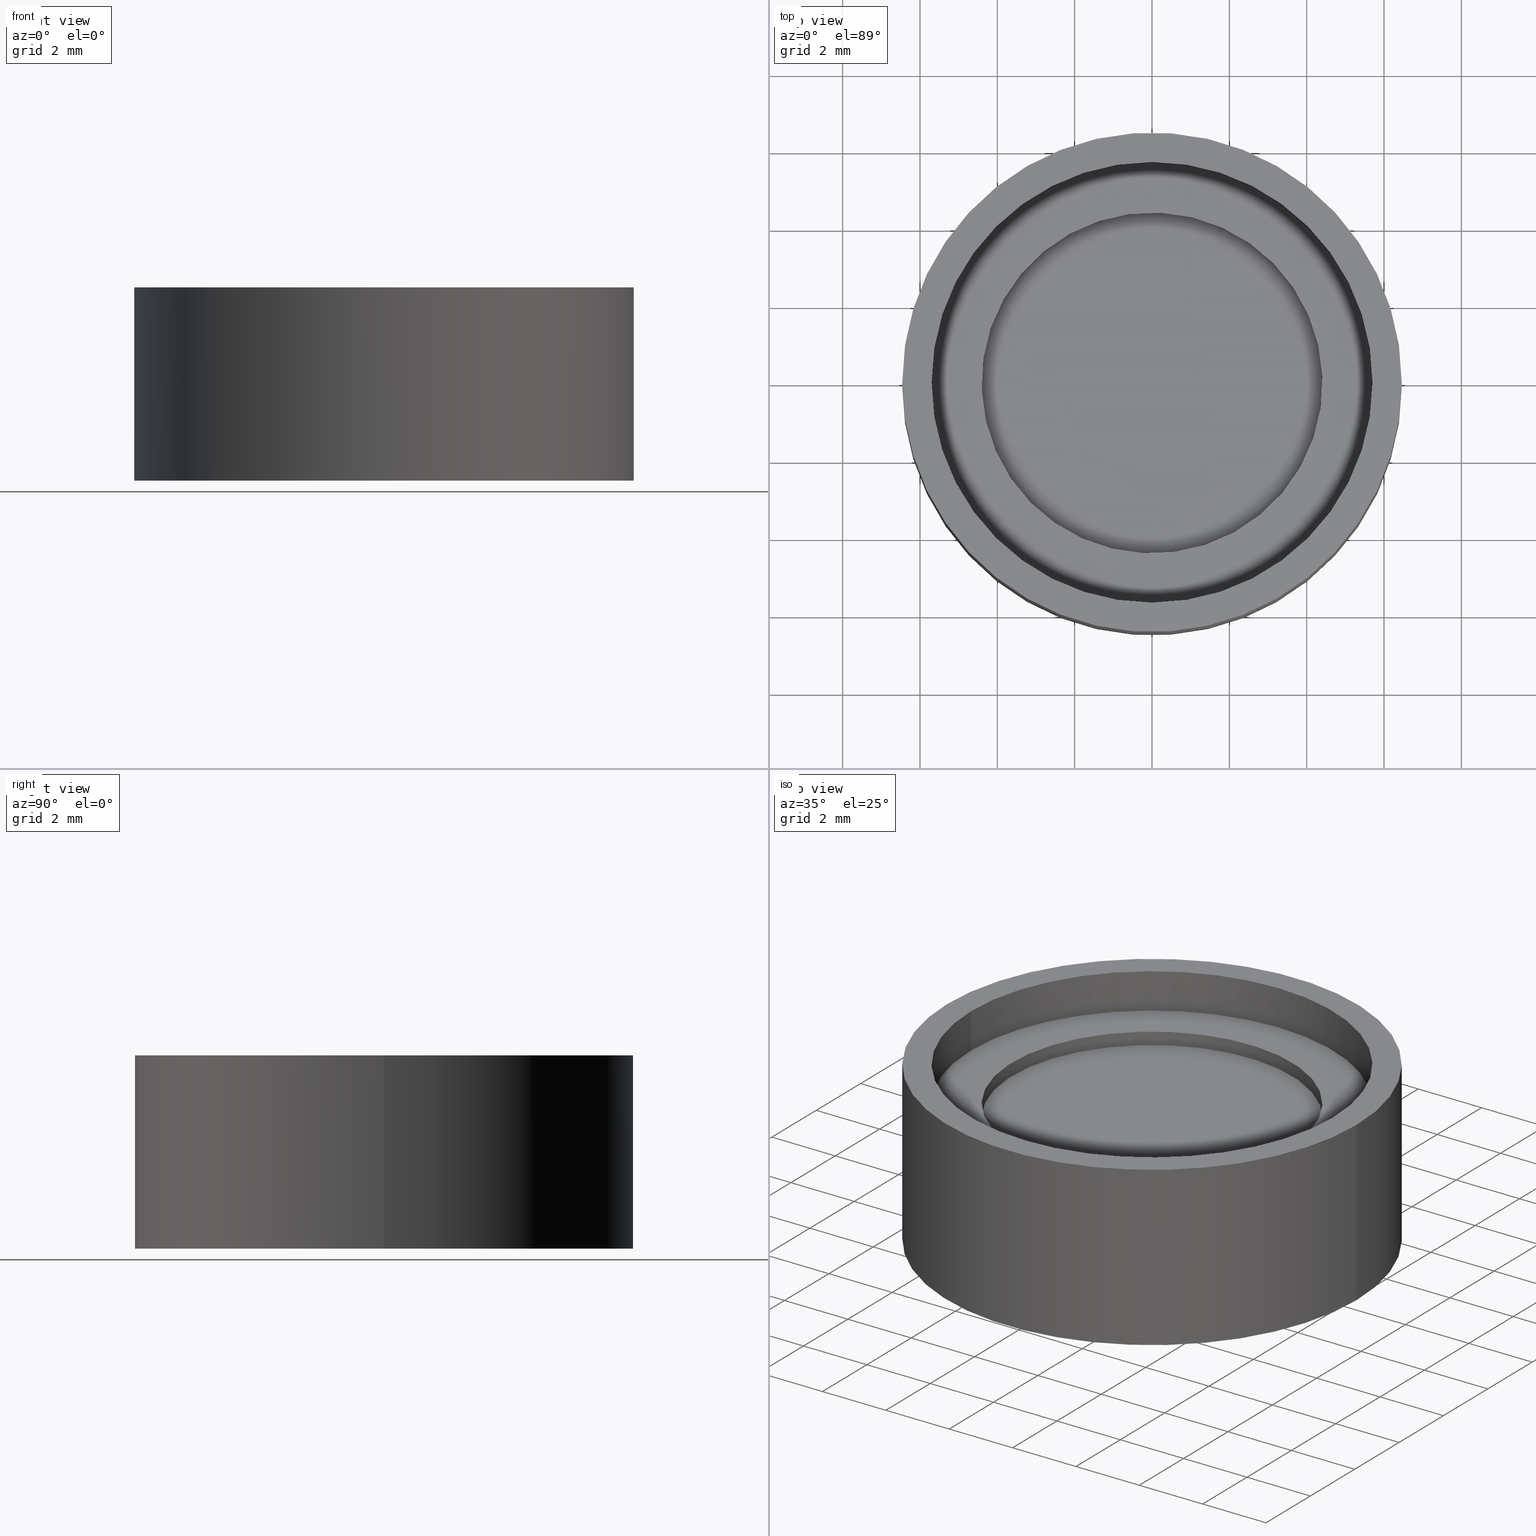
[diagram: canonical four-view strip — front | top / right | iso, engineering-drawing reading convention]
A machine part, canonical four-view strip (front | top / right | iso — engineering-drawing reading convention). The complete STEP part file that produces these views, byte-faithful:
ISO-10303-21;
HEADER;
FILE_DESCRIPTION (( 'STEP AP203' ),
    '1' );
FILE_NAME ('199480.STEP',
    '2020-03-09T09:01:57',
    ( '' ),
    ( '' ),
    'SwSTEP 2.0',
    'SolidWorks 2019',
    '' );
FILE_SCHEMA (( 'CONFIG_CONTROL_DESIGN' ));
ENDSEC;

DATA;
#1 = VERTEX_POINT ( 'NONE', #535 ) ;
#2 = CARTESIAN_POINT ( 'NONE',  ( 0.0000000000000000000, 0.0000000000000000000, -1.118999999999997996 ) ) ;
#3 = LOCAL_TIME ( 17, 1, 57.00000000000000000, #132 ) ;
#4 = ORIENTED_EDGE ( 'NONE', *, *, #342, .T. ) ;
#5 = DIRECTION ( 'NONE',  ( -0.0000000000000000000, -0.0000000000000000000, -1.000000000000000000 ) ) ;
#6 = DIRECTION ( 'NONE',  ( -0.0000000000000000000, -0.0000000000000000000, -1.000000000000000000 ) ) ;
#7 = ORIENTED_EDGE ( 'NONE', *, *, #44, .T. ) ;
#8 = APPLICATION_CONTEXT ( 'configuration controlled 3d designs of mechanical parts and assemblies' ) ;
#9 = CARTESIAN_POINT ( 'NONE',  ( 0.0000000000000000000, 0.0000000000000000000, 2.380999999999999339 ) ) ;
#10 = DIRECTION ( 'NONE',  ( -1.000000000000000000, 0.0000000000000000000, 0.0000000000000000000 ) ) ;
#11 = DIRECTION ( 'NONE',  ( -1.000000000000000000, 0.0000000000000000000, 0.0000000000000000000 ) ) ;
#12 = DIRECTION ( 'NONE',  ( -1.000000000000000000, 0.0000000000000000000, 0.0000000000000000000 ) ) ;
#13 = CARTESIAN_POINT ( 'NONE',  ( -5.200000000000000178, 0.0000000000000000000, -1.118999999999997996 ) ) ;
#14 = AXIS2_PLACEMENT_3D ( 'NONE', #585, #139, #87 ) ;
#15 = LOCAL_TIME ( 17, 1, 57.00000000000000000, #320 ) ;
#16 = PERSON_AND_ORGANIZATION_ROLE ( 'design_owner' ) ;
#17 = ORIENTED_EDGE ( 'NONE', *, *, #44, .F. ) ;
#18 = EDGE_CURVE ( 'NONE', #376, #388, #278, .T. ) ;
#19 = DIRECTION ( 'NONE',  ( -0.0000000000000000000, -0.0000000000000000000, -1.000000000000000000 ) ) ;
#20 = APPLICATION_PROTOCOL_DEFINITION ( 'international standard', 'config_control_design', 1994, #538 ) ;
#21 = ORIENTED_EDGE ( 'NONE', *, *, #196, .T. ) ;
#22 = VECTOR ( 'NONE', #589, 1000.000000000000000 ) ;
#23 = DIRECTION ( 'NONE',  ( 0.0000000000000000000, -0.0000000000000000000, 1.000000000000000000 ) ) ;
#24 = EDGE_CURVE ( 'NONE', #159, #214, #531, .T. ) ;
#25 = CARTESIAN_POINT ( 'NONE',  ( 0.0000000000000000000, 0.0000000000000000000, 2.381000000000000227 ) ) ;
#26 = CC_DESIGN_SECURITY_CLASSIFICATION ( #566, ( #341 ) ) ;
#27 = DIRECTION ( 'NONE',  ( -0.0000000000000000000, -0.0000000000000000000, -1.000000000000000000 ) ) ;
#28 = DIRECTION ( 'NONE',  ( 0.0000000000000000000, 0.0000000000000000000, 1.000000000000000000 ) ) ;
#29 = CALENDAR_DATE ( 2020, 9, 3 ) ;
#30 = DIRECTION ( 'NONE',  ( -1.000000000000000000, 0.0000000000000000000, 0.0000000000000000000 ) ) ;
#31 = ORIENTED_EDGE ( 'NONE', *, *, #448, .F. ) ;
#32 = EDGE_CURVE ( 'NONE', #388, #641, #339, .T. ) ;
#33 = CARTESIAN_POINT ( 'NONE',  ( 0.0000000000000000000, 0.0000000000000000000, -1.695065087290339889 ) ) ;
#34 = AXIS2_PLACEMENT_3D ( 'NONE', #33, #373, #73 ) ;
#35 = CYLINDRICAL_SURFACE ( 'NONE', #540, 6.458015859815825266 ) ;
#36 = EDGE_LOOP ( 'NONE', ( #257, #313 ) ) ;
#37 = ORIENTED_EDGE ( 'NONE', *, *, #173, .F. ) ;
#38 = VERTEX_POINT ( 'NONE', #490 ) ;
#39 = ORIENTED_EDGE ( 'NONE', *, *, #406, .T. ) ;
#40 = CLOSED_SHELL ( 'NONE', ( #122, #600, #93, #127, #502, #64 ) ) ;
#41 = AXIS2_PLACEMENT_3D ( 'NONE', #142, #186, #539 ) ;
#42 = VECTOR ( 'NONE', #215, 1000.000000000000000 ) ;
#43 = DIRECTION ( 'NONE',  ( 0.0000000000000000000, 0.0000000000000000000, 1.000000000000000000 ) ) ;
#44 = EDGE_CURVE ( 'NONE', #390, #626, #124, .T. ) ;
#45 = CARTESIAN_POINT ( 'NONE',  ( 0.0000000000000000000, 0.0000000000000000000, 2.380999999999999339 ) ) ;
#46 = LINE ( 'NONE', #165, #444 ) ;
#47 = DIRECTION ( 'NONE',  ( -1.000000000000000000, 0.0000000000000000000, 0.0000000000000000000 ) ) ;
#48 = DIRECTION ( 'NONE',  ( -0.0000000000000000000, -0.0000000000000000000, -1.000000000000000000 ) ) ;
#49 = VERTEX_POINT ( 'NONE', #636 ) ;
#50 = FACE_BOUND ( 'NONE', #36, .T. ) ;
#51 = ORIENTED_EDGE ( 'NONE', *, *, #379, .F. ) ;
#52 = DIRECTION ( 'NONE',  ( 0.0000000000000000000, 0.0000000000000000000, 1.000000000000000000 ) ) ;
#53 = CARTESIAN_POINT ( 'NONE',  ( 0.0000000000000000000, 0.0000000000000000000, 2.381000000000000227 ) ) ;
#54 = ORIENTED_EDGE ( 'NONE', *, *, #98, .F. ) ;
#55 = AXIS2_PLACEMENT_3D ( 'NONE', #2, #363, #160 ) ;
#56 = DIRECTION ( 'NONE',  ( 0.0000000000000000000, 0.0000000000000000000, -1.000000000000000000 ) ) ;
#57 = CYLINDRICAL_SURFACE ( 'NONE', #365, 5.700000000000000178 ) ;
#58 = CYLINDRICAL_SURFACE ( 'NONE', #171, 6.000000000000000000 ) ;
#59 = DIRECTION ( 'NONE',  ( 0.0000000000000000000, 0.0000000000000000000, 1.000000000000000000 ) ) ;
#60 = DIRECTION ( 'NONE',  ( 0.0000000000000000000, 0.0000000000000000000, 1.000000000000000000 ) ) ;
#61 = CC_DESIGN_DATE_AND_TIME_ASSIGNMENT ( #133, #243, ( #566 ) ) ;
#62 = FACE_OUTER_BOUND ( 'NONE', #495, .T. ) ;
#63 = DIRECTION ( 'NONE',  ( 0.8068447097065265528, 0.5907635858942146267, 0.0000000000000000000 ) ) ;
#64 = ADVANCED_FACE ( 'NONE', ( #527 ), #286, .F. ) ;
#65 = PERSON_AND_ORGANIZATION_ROLE ( 'creator' ) ;
#66 = VECTOR ( 'NONE', #630, 1000.000000000000000 ) ;
#67 = AXIS2_PLACEMENT_3D ( 'NONE', #514, #409, #449 ) ;
#68 = AXIS2_PLACEMENT_3D ( 'NONE', #446, #59, #652 ) ;
#69 = CIRCLE ( 'NONE', #445, 6.000000000000000888 ) ;
#70 = PERSON_AND_ORGANIZATION ( #606, #593 ) ;
#71 = ORIENTED_EDGE ( 'NONE', *, *, #234, .F. ) ;
#72 = EDGE_CURVE ( 'NONE', #181, #529, #491, .T. ) ;
#73 = DIRECTION ( 'NONE',  ( -1.000000000000000000, 0.0000000000000000000, 0.0000000000000000000 ) ) ;
#74 = APPROVAL_ROLE ( '' ) ;
#75 = ORIENTED_EDGE ( 'NONE', *, *, #173, .T. ) ;
#76 = DIRECTION ( 'NONE',  ( 0.8284142084669521289, 0.5601159694296110603, 0.0000000000000000000 ) ) ;
#77 = DIRECTION ( 'NONE',  ( 0.0000000000000000000, 0.0000000000000000000, 1.000000000000000000 ) ) ;
#78 = DATE_TIME_ROLE ( 'creation_date' ) ;
#79 = EDGE_LOOP ( 'NONE', ( #17, #650, #95, #71 ) ) ;
#80 = ADVANCED_FACE ( 'NONE', ( #437 ), #35, .T. ) ;
#81 = AXIS2_PLACEMENT_3D ( 'NONE', #400, #269, #410 ) ;
#82 = LINE ( 'NONE', #635, #154 ) ;
#83 = DIRECTION ( 'NONE',  ( -1.000000000000000000, 0.0000000000000000000, 0.0000000000000000000 ) ) ;
#84 = AXIS2_PLACEMENT_3D ( 'NONE', #13, #353, #270 ) ;
#85 = APPROVAL_DATE_TIME ( #88, #244 ) ;
#86 = CARTESIAN_POINT ( 'NONE',  ( 0.0000000000000000000, 0.0000000000000000000, 2.381000000000000227 ) ) ;
#87 = DIRECTION ( 'NONE',  ( -1.000000000000000000, 0.0000000000000000000, 0.0000000000000000000 ) ) ;
#88 = DATE_AND_TIME ( #29, #233 ) ;
#89 = CARTESIAN_POINT ( 'NONE',  ( 6.000000000000001776, 7.347880794884121708E-16, 0.8809999999999997833 ) ) ;
#90 = DIRECTION ( 'NONE',  ( 0.8284142084669521289, 0.5601159694296110603, 0.0000000000000000000 ) ) ;
#91 = EDGE_CURVE ( 'NONE', #272, #557, #238, .T. ) ;
#92 = EDGE_CURVE ( 'NONE', #38, #371, #627, .T. ) ;
#93 = ADVANCED_FACE ( 'NONE', ( #480 ), #183, .T. ) ;
#94 = ORIENTED_EDGE ( 'NONE', *, *, #508, .T. ) ;
#95 = ORIENTED_EDGE ( 'NONE', *, *, #289, .T. ) ;
#96 = ORIENTED_EDGE ( 'NONE', *, *, #497, .F. ) ;
#97 = ORIENTED_EDGE ( 'NONE', *, *, #328, .F. ) ;
#98 = EDGE_CURVE ( 'NONE', #247, #159, #113, .T. ) ;
#99 = CIRCLE ( 'NONE', #350, 6.000000000000000000 ) ;
#100 = DIRECTION ( 'NONE',  ( -0.0000000000000000000, -0.0000000000000000000, -1.000000000000000000 ) ) ;
#101 = DIRECTION ( 'NONE',  ( 0.8284142084669522399, 0.5601159694296110603, 0.0000000000000000000 ) ) ;
#102 = EDGE_LOOP ( 'NONE', ( #198, #509 ) ) ;
#103 = DIRECTION ( 'NONE',  ( 0.0000000000000000000, -0.0000000000000000000, 1.000000000000000000 ) ) ;
#104 = APPROVAL ( #128, 'δָ��' ) ;
#105 = DIRECTION ( 'NONE',  ( -1.000000000000000000, 0.0000000000000000000, 0.0000000000000000000 ) ) ;
#106 = DIRECTION ( 'NONE',  ( 0.8068447097065264417, 0.5907635858942145157, 0.0000000000000000000 ) ) ;
#107 = FACE_OUTER_BOUND ( 'NONE', #136, .T. ) ;
#108 = FACE_OUTER_BOUND ( 'NONE', #432, .T. ) ;
#109 = ORIENTED_EDGE ( 'NONE', *, *, #217, .T. ) ;
#110 = LINE ( 'NONE', #251, #468 ) ;
#111 = DIRECTION ( 'NONE',  ( -1.000000000000000000, 0.0000000000000000000, 0.0000000000000000000 ) ) ;
#112 = DIRECTION ( 'NONE',  ( 0.8068447097065265528, 0.5907635858942146267, 0.0000000000000000000 ) ) ;
#113 = CIRCLE ( 'NONE', #415, 6.000000000000000888 ) ;
#114 = VERTEX_POINT ( 'NONE', #281 ) ;
#115 = FACE_OUTER_BOUND ( 'NONE', #389, .T. ) ;
#116 = AXIS2_PLACEMENT_3D ( 'NONE', #158, #206, #201 ) ;
#117 = CARTESIAN_POINT ( 'NONE',  ( 0.0000000000000000000, 0.0000000000000000000, 2.381000000000000227 ) ) ;
#118 =( LENGTH_UNIT ( ) NAMED_UNIT ( * ) SI_UNIT ( .MILLI., .METRE. ) );
#119 = EDGE_CURVE ( 'NONE', #293, #440, #479, .T. ) ;
#120 = CARTESIAN_POINT ( 'NONE',  ( -5.700000000000000178, 0.0000000000000000000, 0.8809999999999997833 ) ) ;
#121 = PERSON_AND_ORGANIZATION_ROLE ( 'creator' ) ;
#122 = ADVANCED_FACE ( 'NONE', ( #478 ), #530, .F. ) ;
#123 = PERSON_AND_ORGANIZATION_ROLE ( 'classification_officer' ) ;
#124 = CIRCLE ( 'NONE', #14, 5.200000000000000178 ) ;
#125 = AXIS2_PLACEMENT_3D ( 'NONE', #506, #161, #12 ) ;
#126 = AXIS2_PLACEMENT_3D ( 'NONE', #213, #48, #250 ) ;
#127 = ADVANCED_FACE ( 'NONE', ( #433, #237 ), #329, .F. ) ;
#128 = APPROVAL_STATUS ( 'not_yet_approved' ) ;
#129 = ORIENTED_EDGE ( 'NONE', *, *, #179, .F. ) ;
#130 = DIRECTION ( 'NONE',  ( -1.000000000000000000, 0.0000000000000000000, 0.0000000000000000000 ) ) ;
#131 = ORIENTED_EDGE ( 'NONE', *, *, #192, .F. ) ;
#132 = COORDINATED_UNIVERSAL_TIME_OFFSET ( 8, 0, .AHEAD. ) ;
#133 = DATE_AND_TIME ( #425, #15 ) ;
#134 = EDGE_LOOP ( 'NONE', ( #420, #634 ) ) ;
#135 = DIRECTION ( 'NONE',  ( 0.0000000000000000000, 0.0000000000000000000, 1.000000000000000000 ) ) ;
#136 = EDGE_LOOP ( 'NONE', ( #291, #550 ) ) ;
#137 = AXIS2_PLACEMENT_3D ( 'NONE', #298, #565, #47 ) ;
#138 = DIRECTION ( 'NONE',  ( -1.000000000000000000, 0.0000000000000000000, 0.0000000000000000000 ) ) ;
#139 = DIRECTION ( 'NONE',  ( -0.0000000000000000000, -0.0000000000000000000, -1.000000000000000000 ) ) ;
#140 = CARTESIAN_POINT ( 'NONE',  ( 4.599014845327200618, 3.367352439597023572, 2.380999999999999339 ) ) ;
#141 = DIRECTION ( 'NONE',  ( 0.8284142084669521289, 0.5601159694296110603, 0.0000000000000000000 ) ) ;
#142 = CARTESIAN_POINT ( 'NONE',  ( 0.0000000000000000000, 0.0000000000000000000, 0.8809999999999997833 ) ) ;
#143 = CIRCLE ( 'NONE', #458, 5.699999999999999289 ) ;
#144 = EDGE_CURVE ( 'NONE', #390, #578, #82, .T. ) ;
#145 = ORIENTED_EDGE ( 'NONE', *, *, #561, .F. ) ;
#146 = ORIENTED_EDGE ( 'NONE', *, *, #196, .F. ) ;
#147 = ORIENTED_EDGE ( 'NONE', *, *, #448, .T. ) ;
#148 = EDGE_LOOP ( 'NONE', ( #129, #229, #333, #146 ) ) ;
#149 = DIRECTION ( 'NONE',  ( 0.8068447097065265528, 0.5907635858942146267, 0.0000000000000000000 ) ) ;
#150 = CARTESIAN_POINT ( 'NONE',  ( 0.0000000000000000000, 0.0000000000000000000, 2.762000000000000011 ) ) ;
#151 = EDGE_CURVE ( 'NONE', #529, #181, #168, .T. ) ;
#152 = ORIENTED_EDGE ( 'NONE', *, *, #169, .T. ) ;
#153 = CLOSED_SHELL ( 'NONE', ( #654, #334, #421, #581, #573, #541, #623, #80, #266, #617, #398, #222 ) ) ;
#154 = VECTOR ( 'NONE', #285, 1000.000000000000000 ) ;
#155 = CARTESIAN_POINT ( 'NONE',  ( 5.200000000000000178, 6.368163355566236381E-16, -1.118999999999997996 ) ) ;
#156 = FACE_OUTER_BOUND ( 'NONE', #554, .T. ) ;
#157 = CARTESIAN_POINT ( 'NONE',  ( 0.0000000000000000000, 0.0000000000000000000, 3.881000000000001560 ) ) ;
#158 = CARTESIAN_POINT ( 'NONE',  ( -6.000000000000000000, 0.0000000000000000000, 0.3810000000000000053 ) ) ;
#159 = VERTEX_POINT ( 'NONE', #89 ) ;
#160 = DIRECTION ( 'NONE',  ( -1.000000000000000000, 0.0000000000000000000, 0.0000000000000000000 ) ) ;
#161 = DIRECTION ( 'NONE',  ( -0.0000000000000000000, -0.0000000000000000000, -1.000000000000000000 ) ) ;
#162 = EDGE_CURVE ( 'NONE', #214, #49, #99, .T. ) ;
#163 = CYLINDRICAL_SURFACE ( 'NONE', #225, 5.200000000000000178 ) ;
#164 = ORIENTED_EDGE ( 'NONE', *, *, #264, .F. ) ;
#165 = CARTESIAN_POINT ( 'NONE',  ( -5.700000000000000178, 0.0000000000000000000, -1.695065087290339889 ) ) ;
#166 = CARTESIAN_POINT ( 'NONE',  ( -4.734387201388630118, -3.201062765290225709, 2.381000000000000227 ) ) ;
#167 = CARTESIAN_POINT ( 'NONE',  ( -4.599014845327200618, -3.367352439597023128, 0.3810000000000000053 ) ) ;
#168 = CIRCLE ( 'NONE', #288, 4.406899999999999373 ) ;
#169 = EDGE_CURVE ( 'NONE', #1, #529, #182, .T. ) ;
#170 = VECTOR ( 'NONE', #302, 1000.000000000000000 ) ;
#171 = AXIS2_PLACEMENT_3D ( 'NONE', #267, #412, #598 ) ;
#172 = CARTESIAN_POINT ( 'NONE',  ( 0.0000000000000000000, 0.0000000000000000000, -1.118999999999997996 ) ) ;
#173 = EDGE_CURVE ( 'NONE', #387, #345, #498, .T. ) ;
#174 = PERSON_AND_ORGANIZATION ( #606, #593 ) ;
#175 = ORIENTED_EDGE ( 'NONE', *, *, #271, .F. ) ;
#176 = VECTOR ( 'NONE', #591, 1000.000000000000000 ) ;
#177 = CIRCLE ( 'NONE', #312, 5.714999999999998082 ) ;
#178 = DIRECTION ( 'NONE',  ( -0.0000000000000000000, -0.0000000000000000000, -1.000000000000000000 ) ) ;
#179 = EDGE_CURVE ( 'NONE', #293, #450, #422, .T. ) ;
#180 = PERSON_AND_ORGANIZATION ( #606, #593 ) ;
#181 = VERTEX_POINT ( 'NONE', #185 ) ;
#182 = LINE ( 'NONE', #577, #66 ) ;
#183 = CYLINDRICAL_SURFACE ( 'NONE', #259, 5.714999999999998082 ) ;
#184 = CC_DESIGN_DATE_AND_TIME_ASSIGNMENT ( #370, #78, ( #227 ) ) ;
#185 = CARTESIAN_POINT ( 'NONE',  ( -3.650738575293011490, -2.468375065679352165, 2.762000000000000011 ) ) ;
#186 = DIRECTION ( 'NONE',  ( -0.0000000000000000000, -0.0000000000000000000, -1.000000000000000000 ) ) ;
#187 = CIRCLE ( 'NONE', #352, 6.458015859815825266 ) ;
#188 = CARTESIAN_POINT ( 'NONE',  ( -6.458015859815825266, 0.0000000000000000000, -1.695065087290339889 ) ) ;
#189 = DIRECTION ( 'NONE',  ( 0.0000000000000000000, 0.0000000000000000000, 1.000000000000000000 ) ) ;
#190 = LOCAL_TIME ( 17, 1, 57.00000000000000000, #220 ) ;
#191 = DIRECTION ( 'NONE',  ( -1.000000000000000000, 0.0000000000000000000, 0.0000000000000000000 ) ) ;
#192 = EDGE_CURVE ( 'NONE', #345, #387, #241, .T. ) ;
#193 = ORIENTED_EDGE ( 'NONE', *, *, #72, .T. ) ;
#194 = ORIENTED_EDGE ( 'NONE', *, *, #386, .T. ) ;
#195 = AXIS2_PLACEMENT_3D ( 'NONE', #377, #325, #138 ) ;
#196 = EDGE_CURVE ( 'NONE', #450, #322, #571, .T. ) ;
#197 = ORIENTED_EDGE ( 'NONE', *, *, #328, .T. ) ;
#198 = ORIENTED_EDGE ( 'NONE', *, *, #497, .T. ) ;
#199 = MANIFOLD_SOLID_BREP ( 'NONE', #618 ) ;
#200 = FACE_OUTER_BOUND ( 'NONE', #102, .T. ) ;
#201 = DIRECTION ( 'NONE',  ( 1.000000000000000000, 0.0000000000000000000, -0.0000000000000000000 ) ) ;
#202 = DIRECTION ( 'NONE',  ( 0.8068447097065265528, 0.5907635858942146267, 0.0000000000000000000 ) ) ;
#203 = ORIENTED_EDGE ( 'NONE', *, *, #323, .T. ) ;
#204 = DIRECTION ( 'NONE',  ( 0.8068447097065264417, 0.5907635858942145157, 0.0000000000000000000 ) ) ;
#205 = AXIS2_PLACEMENT_3D ( 'NONE', #280, #23, #428 ) ;
#206 = DIRECTION ( 'NONE',  ( 0.0000000000000000000, 0.0000000000000000000, 1.000000000000000000 ) ) ;
#207 = EDGE_LOOP ( 'NONE', ( #362, #404, #381, #346 ) ) ;
#208 = AXIS2_PLACEMENT_3D ( 'NONE', #226, #632, #472 ) ;
#209 = CARTESIAN_POINT ( 'NONE',  ( 0.0000000000000000000, 0.0000000000000000000, 2.380999999999999339 ) ) ;
#210 = EDGE_LOOP ( 'NONE', ( #580, #7 ) ) ;
#211 = DIRECTION ( 'NONE',  ( 0.0000000000000000000, 0.0000000000000000000, 1.000000000000000000 ) ) ;
#212 = EDGE_CURVE ( 'NONE', #440, #322, #640, .T. ) ;
#213 = CARTESIAN_POINT ( 'NONE',  ( 0.0000000000000000000, 0.0000000000000000000, -1.695065087290339889 ) ) ;
#214 = VERTEX_POINT ( 'NONE', #588 ) ;
#215 = DIRECTION ( 'NONE',  ( -0.0000000000000000000, -0.0000000000000000000, -1.000000000000000000 ) ) ;
#216 = DIRECTION ( 'NONE',  ( -0.0000000000000000000, -0.0000000000000000000, -1.000000000000000000 ) ) ;
#217 = EDGE_CURVE ( 'NONE', #496, #601, #335, .T. ) ;
#218 = CARTESIAN_POINT ( 'NONE',  ( 0.0000000000000000000, 0.0000000000000000000, 2.380999999999999339 ) ) ;
#219 = CARTESIAN_POINT ( 'NONE',  ( 0.0000000000000000000, 0.0000000000000000000, 2.381000000000000227 ) ) ;
#220 = COORDINATED_UNIVERSAL_TIME_OFFSET ( 8, 0, .AHEAD. ) ;
#221 = AXIS2_PLACEMENT_3D ( 'NONE', #486, #584, #30 ) ;
#222 = ADVANCED_FACE ( 'NONE', ( #526 ), #489, .F. ) ;
#223 = AXIS2_PLACEMENT_3D ( 'NONE', #567, #211, #520 ) ;
#224 = CIRCLE ( 'NONE', #68, 5.714999999999998082 ) ;
#225 = AXIS2_PLACEMENT_3D ( 'NONE', #602, #6, #347 ) ;
#226 = CARTESIAN_POINT ( 'NONE',  ( 0.0000000000000000000, 0.0000000000000000000, 0.0000000000000000000 ) ) ;
#227 = PRODUCT_DEFINITION ( 'δ֪', '', #341, #463 ) ;
#228 = PERSON_AND_ORGANIZATION ( #606, #593 ) ;
#229 = ORIENTED_EDGE ( 'NONE', *, *, #119, .T. ) ;
#230 = CARTESIAN_POINT ( 'NONE',  ( -6.000000000000000888, 0.0000000000000000000, 0.8809999999999997833 ) ) ;
#231 = APPROVAL_STATUS ( 'not_yet_approved' ) ;
#232 = EDGE_LOOP ( 'NONE', ( #608, #109, #197, #646 ) ) ;
#233 = LOCAL_TIME ( 17, 1, 57.00000000000000000, #644 ) ;
#234 = EDGE_CURVE ( 'NONE', #626, #408, #582, .T. ) ;
#235 = CARTESIAN_POINT ( 'NONE',  ( 0.0000000000000000000, 0.0000000000000000000, 3.881000000000001560 ) ) ;
#236 = DIRECTION ( 'NONE',  ( 0.0000000000000000000, 0.0000000000000000000, 1.000000000000000000 ) ) ;
#237 = FACE_BOUND ( 'NONE', #255, .T. ) ;
#238 = LINE ( 'NONE', #385, #176 ) ;
#239 = DIRECTION ( 'NONE',  ( -1.000000000000000000, 0.0000000000000000000, 0.0000000000000000000 ) ) ;
#240 = ORIENTED_EDGE ( 'NONE', *, *, #32, .F. ) ;
#241 = CIRCLE ( 'NONE', #195, 5.699999999999999289 ) ;
#242 = CARTESIAN_POINT ( 'NONE',  ( 0.0000000000000000000, 0.0000000000000000000, -1.695065087290339889 ) ) ;
#243 = DATE_TIME_ROLE ( 'classification_date' ) ;
#244 = APPROVAL ( #337, 'δָ��' ) ;
#245 = ORIENTED_EDGE ( 'NONE', *, *, #217, .F. ) ;
#246 = ORIENTED_EDGE ( 'NONE', *, *, #430, .F. ) ;
#247 = VERTEX_POINT ( 'NONE', #230 ) ;
#248 = ORIENTED_EDGE ( 'NONE', *, *, #24, .F. ) ;
#249 = CARTESIAN_POINT ( 'NONE',  ( -6.000000000000000000, 0.0000000000000000000, -1.695065087290339889 ) ) ;
#250 = DIRECTION ( 'NONE',  ( -1.000000000000000000, 0.0000000000000000000, 0.0000000000000000000 ) ) ;
#251 = CARTESIAN_POINT ( 'NONE',  ( 4.734387201388630118, 3.201062765290226153, 2.381000000000000227 ) ) ;
#252 = VERTEX_POINT ( 'NONE', #338 ) ;
#253 = CARTESIAN_POINT ( 'NONE',  ( 0.0000000000000000000, 0.0000000000000000000, -1.695065087290339889 ) ) ;
#254 = FACE_BOUND ( 'NONE', #613, .T. ) ;
#255 = EDGE_LOOP ( 'NONE', ( #399, #194 ) ) ;
#256 = CARTESIAN_POINT ( 'NONE',  ( 6.458015859815827042, 7.908788451566294723E-16, -1.118999999999997996 ) ) ;
#257 = ORIENTED_EDGE ( 'NONE', *, *, #374, .F. ) ;
#258 = PLANE ( 'NONE',  #223 ) ;
#259 = AXIS2_PLACEMENT_3D ( 'NONE', #25, #236, #429 ) ;
#260 = AXIS2_PLACEMENT_3D ( 'NONE', #314, #603, #354 ) ;
#261 = FACE_BOUND ( 'NONE', #210, .T. ) ;
#262 = ORIENTED_EDGE ( 'NONE', *, *, #144, .F. ) ;
#263 = LINE ( 'NONE', #461, #42 ) ;
#264 = EDGE_CURVE ( 'NONE', #626, #390, #321, .T. ) ;
#265 = DIRECTION ( 'NONE',  ( -0.0000000000000000000, -0.0000000000000000000, -1.000000000000000000 ) ) ;
#266 = ADVANCED_FACE ( 'NONE', ( #462, #360 ), #258, .T. ) ;
#267 = CARTESIAN_POINT ( 'NONE',  ( 0.0000000000000000000, 0.0000000000000000000, -1.695065087290339889 ) ) ;
#268 = FACE_OUTER_BOUND ( 'NONE', #594, .T. ) ;
#269 = DIRECTION ( 'NONE',  ( 0.0000000000000000000, 0.0000000000000000000, 1.000000000000000000 ) ) ;
#270 = DIRECTION ( 'NONE',  ( -1.000000000000000000, 0.0000000000000000000, 0.0000000000000000000 ) ) ;
#271 = EDGE_CURVE ( 'NONE', #1, #252, #564, .T. ) ;
#272 = VERTEX_POINT ( 'NONE', #457 ) ;
#273 = CARTESIAN_POINT ( 'NONE',  ( -5.200000000000000178, 0.0000000000000000000, -1.695065087290339889 ) ) ;
#274 = APPROVAL_DATE_TIME ( #375, #305 ) ;
#275 = SHAPE_DEFINITION_REPRESENTATION ( #569, #284 ) ;
#276 = ORIENTED_EDGE ( 'NONE', *, *, #488, .F. ) ;
#277 = DIRECTION ( 'NONE',  ( -1.000000000000000000, 0.0000000000000000000, 0.0000000000000000000 ) ) ;
#278 = LINE ( 'NONE', #485, #396 ) ;
#279 = AXIS2_PLACEMENT_3D ( 'NONE', #610, #308, #63 ) ;
#280 = CARTESIAN_POINT ( 'NONE',  ( 0.0000000000000000000, 0.0000000000000000000, 2.381000000000000227 ) ) ;
#281 = CARTESIAN_POINT ( 'NONE',  ( 4.734387201388630118, 3.201062765290226153, 2.381000000000000227 ) ) ;
#282 = DIRECTION ( 'NONE',  ( 0.8284142084669521289, 0.5601159694296110603, 0.0000000000000000000 ) ) ;
#283 = CARTESIAN_POINT ( 'NONE',  ( 0.0000000000000000000, 0.0000000000000000000, 2.381000000000000227 ) ) ;
#284 = ADVANCED_BREP_SHAPE_REPRESENTATION ( '199480', ( #199, #394, #637, #208 ), #576 ) ;
#285 = DIRECTION ( 'NONE',  ( -0.0000000000000000000, -0.0000000000000000000, -1.000000000000000000 ) ) ;
#286 = CYLINDRICAL_SURFACE ( 'NONE', #348, 4.406899999999999373 ) ;
#287 = CC_DESIGN_PERSON_AND_ORGANIZATION_ASSIGNMENT ( #228, #65, ( #227 ) ) ;
#288 = AXIS2_PLACEMENT_3D ( 'NONE', #431, #135, #76 ) ;
#289 = EDGE_CURVE ( 'NONE', #578, #408, #492, .T. ) ;
#290 = ORIENTED_EDGE ( 'NONE', *, *, #392, .F. ) ;
#291 = ORIENTED_EDGE ( 'NONE', *, *, #98, .T. ) ;
#292 = ORIENTED_EDGE ( 'NONE', *, *, #474, .F. ) ;
#293 = VERTEX_POINT ( 'NONE', #465 ) ;
#294 = EDGE_LOOP ( 'NONE', ( #460, #75 ) ) ;
#295 = CARTESIAN_POINT ( 'NONE',  ( 4.599014845327200618, 3.367352439597023572, 0.3810000000000000053 ) ) ;
#296 = DIRECTION ( 'NONE',  ( 0.0000000000000000000, 0.0000000000000000000, 1.000000000000000000 ) ) ;
#297 = EDGE_LOOP ( 'NONE', ( #595, #301, #147, #240 ) ) ;
#298 = CARTESIAN_POINT ( 'NONE',  ( 0.0000000000000000000, 0.0000000000000000000, 0.3809999999999998388 ) ) ;
#299 = ADVANCED_FACE ( 'NONE', ( #519 ), #620, .F. ) ;
#300 = CARTESIAN_POINT ( 'NONE',  ( 0.0000000000000000000, 0.0000000000000000000, 2.381000000000000227 ) ) ;
#301 = ORIENTED_EDGE ( 'NONE', *, *, #645, .T. ) ;
#302 = DIRECTION ( 'NONE',  ( -0.0000000000000000000, -0.0000000000000000000, -1.000000000000000000 ) ) ;
#303 = CARTESIAN_POINT ( 'NONE',  ( 0.0000000000000000000, 0.0000000000000000000, 0.3810000000000000053 ) ) ;
#304 = FACE_OUTER_BOUND ( 'NONE', #500, .T. ) ;
#305 = APPROVAL ( #231, 'δָ��' ) ;
#306 = EDGE_LOOP ( 'NONE', ( #37, #358, #597, #434 ) ) ;
#307 = DIRECTION ( 'NONE',  ( 0.0000000000000000000, 0.0000000000000000000, 1.000000000000000000 ) ) ;
#308 = DIRECTION ( 'NONE',  ( 0.0000000000000000000, 0.0000000000000000000, 1.000000000000000000 ) ) ;
#309 = CIRCLE ( 'NONE', #340, 6.458015859815826154 ) ;
#310 = CIRCLE ( 'NONE', #481, 5.699999999999999289 ) ;
#311 = DIRECTION ( 'NONE',  ( -0.8068447097065265528, -0.5907635858942146267, 0.0000000000000000000 ) ) ;
#312 = AXIS2_PLACEMENT_3D ( 'NONE', #53, #447, #607 ) ;
#313 = ORIENTED_EDGE ( 'NONE', *, *, #92, .F. ) ;
#314 = CARTESIAN_POINT ( 'NONE',  ( 0.0000000000000000000, 0.0000000000000000000, -1.695065087290339889 ) ) ;
#315 = DIRECTION ( 'NONE',  ( 0.8284142084669521289, 0.5601159694296110603, 0.0000000000000000000 ) ) ;
#316 = CYLINDRICAL_SURFACE ( 'NONE', #367, 5.200000000000000178 ) ;
#317 = CARTESIAN_POINT ( 'NONE',  ( 0.0000000000000000000, 0.0000000000000000000, 0.8809999999999997833 ) ) ;
#318 = PRODUCT_RELATED_PRODUCT_CATEGORY ( 'detail', '', ( #590 ) ) ;
#319 = PERSON_AND_ORGANIZATION ( #606, #593 ) ;
#320 = COORDINATED_UNIVERSAL_TIME_OFFSET ( 8, 0, .AHEAD. ) ;
#321 = CIRCLE ( 'NONE', #125, 5.200000000000000178 ) ;
#322 = VERTEX_POINT ( 'NONE', #364 ) ;
#323 = EDGE_CURVE ( 'NONE', #322, #450, #309, .T. ) ;
#324 = UNCERTAINTY_MEASURE_WITH_UNIT (LENGTH_MEASURE( 1.000000000000000082E-05 ), #118, 'distance_accuracy_value', 'NONE');
#325 = DIRECTION ( 'NONE',  ( -0.0000000000000000000, -0.0000000000000000000, -1.000000000000000000 ) ) ;
#326 = CARTESIAN_POINT ( 'NONE',  ( 0.0000000000000000000, 0.0000000000000000000, 2.762000000000000011 ) ) ;
#327 = ORIENTED_EDGE ( 'NONE', *, *, #386, .F. ) ;
#328 = EDGE_CURVE ( 'NONE', #601, #557, #515, .T. ) ;
#329 = PLANE ( 'NONE',  #205 ) ;
#330 = ORIENTED_EDGE ( 'NONE', *, *, #474, .T. ) ;
#331 = AXIS2_PLACEMENT_3D ( 'NONE', #614, #56, #553 ) ;
#332 = CARTESIAN_POINT ( 'NONE',  ( 0.0000000000000000000, 0.0000000000000000000, -1.118999999999997996 ) ) ;
#333 = ORIENTED_EDGE ( 'NONE', *, *, #212, .T. ) ;
#334 = ADVANCED_FACE ( 'NONE', ( #516 ), #57, .F. ) ;
#335 = LINE ( 'NONE', #140, #435 ) ;
#336 = DIRECTION ( 'NONE',  ( 0.8284142084669521289, 0.5601159694296110603, 0.0000000000000000000 ) ) ;
#337 = APPROVAL_STATUS ( 'not_yet_approved' ) ;
#338 = CARTESIAN_POINT ( 'NONE',  ( -3.650738575293011490, -2.468375065679352165, 2.381000000000000227 ) ) ;
#339 = CIRCLE ( 'NONE', #413, 5.714999999999998082 ) ;
#340 = AXIS2_PLACEMENT_3D ( 'NONE', #172, #559, #111 ) ;
#341 = PRODUCT_DEFINITION_FORMATION_WITH_SPECIFIED_SOURCE ( '�κ�', '', #590, .NOT_KNOWN. ) ;
#342 = EDGE_CURVE ( 'NONE', #114, #376, #649, .T. ) ;
#343 = ORIENTED_EDGE ( 'NONE', *, *, #234, .T. ) ;
#344 = ORIENTED_EDGE ( 'NONE', *, *, #508, .F. ) ;
#345 = VERTEX_POINT ( 'NONE', #368 ) ;
#346 = ORIENTED_EDGE ( 'NONE', *, *, #471, .F. ) ;
#347 = DIRECTION ( 'NONE',  ( -1.000000000000000000, 0.0000000000000000000, 0.0000000000000000000 ) ) ;
#348 = AXIS2_PLACEMENT_3D ( 'NONE', #283, #77, #336 ) ;
#349 = DIRECTION ( 'NONE',  ( 0.0000000000000000000, -0.0000000000000000000, 1.000000000000000000 ) ) ;
#350 = AXIS2_PLACEMENT_3D ( 'NONE', #484, #27, #277 ) ;
#351 = ORIENTED_EDGE ( 'NONE', *, *, #91, .T. ) ;
#352 = AXIS2_PLACEMENT_3D ( 'NONE', #157, #355, #555 ) ;
#353 = DIRECTION ( 'NONE',  ( -0.0000000000000000000, 0.0000000000000000000, -1.000000000000000000 ) ) ;
#354 = DIRECTION ( 'NONE',  ( -1.000000000000000000, 0.0000000000000000000, 0.0000000000000000000 ) ) ;
#355 = DIRECTION ( 'NONE',  ( -0.0000000000000000000, -0.0000000000000000000, -1.000000000000000000 ) ) ;
#356 = CC_DESIGN_PERSON_AND_ORGANIZATION_ASSIGNMENT ( #369, #123, ( #566 ) ) ;
#357 = DIRECTION ( 'NONE',  ( 0.0000000000000000000, 0.0000000000000000000, 1.000000000000000000 ) ) ;
#358 = ORIENTED_EDGE ( 'NONE', *, *, #488, .T. ) ;
#359 = PLANE ( 'NONE',  #501 ) ;
#360 = FACE_OUTER_BOUND ( 'NONE', #575, .T. ) ;
#361 = PLANE ( 'NONE',  #116 ) ;
#362 = ORIENTED_EDGE ( 'NONE', *, *, #625, .F. ) ;
#363 = DIRECTION ( 'NONE',  ( -0.0000000000000000000, -0.0000000000000000000, -1.000000000000000000 ) ) ;
#364 = CARTESIAN_POINT ( 'NONE',  ( -6.458015859815826154, 0.0000000000000000000, -1.118999999999997996 ) ) ;
#365 = AXIS2_PLACEMENT_3D ( 'NONE', #253, #265, #511 ) ;
#366 = CARTESIAN_POINT ( 'NONE',  ( 0.0000000000000000000, 0.0000000000000000000, -1.695065087290339889 ) ) ;
#367 = AXIS2_PLACEMENT_3D ( 'NONE', #366, #100, #105 ) ;
#368 = CARTESIAN_POINT ( 'NONE',  ( -5.699999999999999289, 0.0000000000000000000, 3.881000000000001560 ) ) ;
#369 = PERSON_AND_ORGANIZATION ( #606, #593 ) ;
#370 = DATE_AND_TIME ( #528, #190 ) ;
#371 = VERTEX_POINT ( 'NONE', #120 ) ;
#372 = AXIS2_PLACEMENT_3D ( 'NONE', #300, #556, #560 ) ;
#373 = DIRECTION ( 'NONE',  ( -0.0000000000000000000, -0.0000000000000000000, -1.000000000000000000 ) ) ;
#374 = EDGE_CURVE ( 'NONE', #371, #38, #619, .T. ) ;
#375 = DATE_AND_TIME ( #423, #3 ) ;
#376 = VERTEX_POINT ( 'NONE', #166 ) ;
#377 = CARTESIAN_POINT ( 'NONE',  ( 0.0000000000000000000, 0.0000000000000000000, 3.881000000000001560 ) ) ;
#378 = CARTESIAN_POINT ( 'NONE',  ( 0.0000000000000000000, 0.0000000000000000000, 0.8809999999999997833 ) ) ;
#379 = EDGE_CURVE ( 'NONE', #49, #214, #441, .T. ) ;
#380 = DIRECTION ( 'NONE',  ( 0.0000000000000000000, 0.0000000000000000000, 1.000000000000000000 ) ) ;
#381 = ORIENTED_EDGE ( 'NONE', *, *, #162, .T. ) ;
#382 = AXIS2_PLACEMENT_3D ( 'NONE', #150, #349, #101 ) ;
#383 = DIRECTION ( 'NONE',  ( -0.0000000000000000000, -0.0000000000000000000, -1.000000000000000000 ) ) ;
#384 = CARTESIAN_POINT ( 'NONE',  ( 6.000000000000000000, 7.347880794884119736E-16, -1.695065087290339889 ) ) ;
#385 = CARTESIAN_POINT ( 'NONE',  ( -4.599014845327200618, -3.367352439597023128, 2.380999999999999339 ) ) ;
#386 = EDGE_CURVE ( 'NONE', #252, #1, #532, .T. ) ;
#387 = VERTEX_POINT ( 'NONE', #451 ) ;
#388 = VERTEX_POINT ( 'NONE', #657 ) ;
#389 = EDGE_LOOP ( 'NONE', ( #442, #604, #493, #513 ) ) ;
#390 = VERTEX_POINT ( 'NONE', #605 ) ;
#391 = CARTESIAN_POINT ( 'NONE',  ( 3.650738575293011046, 2.468375065679352609, 2.762000000000000011 ) ) ;
#392 = EDGE_CURVE ( 'NONE', #440, #293, #187, .T. ) ;
#393 = FACE_BOUND ( 'NONE', #134, .T. ) ;
#394 = MANIFOLD_SOLID_BREP ( 'NONE', #40 ) ;
#395 =( NAMED_UNIT ( * ) PLANE_ANGLE_UNIT ( ) SI_UNIT ( $, .RADIAN. ) );
#396 = VECTOR ( 'NONE', #189, 1000.000000000000000 ) ;
#397 = CYLINDRICAL_SURFACE ( 'NONE', #331, 5.699999999999999289 ) ;
#398 = ADVANCED_FACE ( 'NONE', ( #107, #50 ), #609, .T. ) ;
#399 = ORIENTED_EDGE ( 'NONE', *, *, #271, .T. ) ;
#400 = CARTESIAN_POINT ( 'NONE',  ( 0.0000000000000000000, 0.0000000000000000000, 2.381000000000000227 ) ) ;
#401 = CYLINDRICAL_SURFACE ( 'NONE', #126, 5.700000000000000178 ) ;
#402 = ORIENTED_EDGE ( 'NONE', *, *, #342, .F. ) ;
#403 = CYLINDRICAL_SURFACE ( 'NONE', #260, 6.458015859815825266 ) ;
#404 = ORIENTED_EDGE ( 'NONE', *, *, #24, .T. ) ;
#405 = CARTESIAN_POINT ( 'NONE',  ( 0.0000000000000000000, 0.0000000000000000000, -1.118999999999997996 ) ) ;
#406 = EDGE_CURVE ( 'NONE', #345, #371, #46, .T. ) ;
#407 = CARTESIAN_POINT ( 'NONE',  ( 4.734387201388630118, 3.201062765290226153, 2.762000000000000011 ) ) ;
#408 = VERTEX_POINT ( 'NONE', #655 ) ;
#409 = DIRECTION ( 'NONE',  ( -0.0000000000000000000, 0.0000000000000000000, -1.000000000000000000 ) ) ;
#410 = DIRECTION ( 'NONE',  ( 0.8284142084669521289, 0.5601159694296110603, 0.0000000000000000000 ) ) ;
#411 = EDGE_CURVE ( 'NONE', #496, #272, #310, .T. ) ;
#412 = DIRECTION ( 'NONE',  ( -0.0000000000000000000, -0.0000000000000000000, -1.000000000000000000 ) ) ;
#413 = AXIS2_PLACEMENT_3D ( 'NONE', #326, #639, #141 ) ;
#414 = DIRECTION ( 'NONE',  ( 0.8284142084669521289, 0.5601159694296110603, 0.0000000000000000000 ) ) ;
#415 = AXIS2_PLACEMENT_3D ( 'NONE', #378, #583, #83 ) ;
#416 = AXIS2_PLACEMENT_3D ( 'NONE', #317, #216, #615 ) ;
#417 = APPLICATION_PROTOCOL_DEFINITION ( 'international standard', 'config_control_design', 1994, #8 ) ;
#418 = APPROVAL_DATE_TIME ( #524, #104 ) ;
#419 = ADVANCED_FACE ( 'NONE', ( #156 ), #397, .T. ) ;
#420 = ORIENTED_EDGE ( 'NONE', *, *, #151, .F. ) ;
#421 = ADVANCED_FACE ( 'NONE', ( #115 ), #403, .T. ) ;
#422 = LINE ( 'NONE', #638, #522 ) ;
#423 = CALENDAR_DATE ( 2020, 9, 3 ) ;
#424 = AXIS2_PLACEMENT_3D ( 'NONE', #332, #534, #239 ) ;
#425 = CALENDAR_DATE ( 2020, 9, 3 ) ;
#426 = EDGE_LOOP ( 'NONE', ( #292, #175, #152, #453 ) ) ;
#427 = AXIS2_PLACEMENT_3D ( 'NONE', #218, #653, #311 ) ;
#428 = DIRECTION ( 'NONE',  ( 0.8284142084669522399, 0.5601159694296110603, 0.0000000000000000000 ) ) ;
#429 = DIRECTION ( 'NONE',  ( 0.8284142084669521289, 0.5601159694296110603, 0.0000000000000000000 ) ) ;
#430 = EDGE_CURVE ( 'NONE', #408, #578, #587, .T. ) ;
#431 = CARTESIAN_POINT ( 'NONE',  ( 0.0000000000000000000, 0.0000000000000000000, 2.762000000000000011 ) ) ;
#432 = EDGE_LOOP ( 'NONE', ( #4, #546, #96, #31 ) ) ;
#433 = FACE_OUTER_BOUND ( 'NONE', #596, .T. ) ;
#434 = ORIENTED_EDGE ( 'NONE', *, *, #406, .F. ) ;
#435 = VECTOR ( 'NONE', #536, 1000.000000000000000 ) ;
#436 = CC_DESIGN_APPROVAL ( #104, ( #341 ) ) ;
#437 = FACE_OUTER_BOUND ( 'NONE', #148, .T. ) ;
#438 = ADVANCED_FACE ( 'NONE', ( #268 ), #359, .T. ) ;
#439 = ORIENTED_EDGE ( 'NONE', *, *, #645, .F. ) ;
#440 = VERTEX_POINT ( 'NONE', #499 ) ;
#441 = CIRCLE ( 'NONE', #137, 6.000000000000000000 ) ;
#442 = ORIENTED_EDGE ( 'NONE', *, *, #392, .T. ) ;
#443 = ORIENTED_EDGE ( 'NONE', *, *, #430, .T. ) ;
#444 = VECTOR ( 'NONE', #464, 1000.000000000000000 ) ;
#445 = AXIS2_PLACEMENT_3D ( 'NONE', #616, #658, #11 ) ;
#446 = CARTESIAN_POINT ( 'NONE',  ( 0.0000000000000000000, 0.0000000000000000000, 2.762000000000000011 ) ) ;
#447 = DIRECTION ( 'NONE',  ( 0.0000000000000000000, 0.0000000000000000000, 1.000000000000000000 ) ) ;
#448 = EDGE_CURVE ( 'NONE', #114, #641, #110, .T. ) ;
#449 = DIRECTION ( 'NONE',  ( -1.000000000000000000, 0.0000000000000000000, 0.0000000000000000000 ) ) ;
#450 = VERTEX_POINT ( 'NONE', #256 ) ;
#451 = CARTESIAN_POINT ( 'NONE',  ( 5.699999999999999289, 6.980486755139912122E-16, 3.881000000000001560 ) ) ;
#452 = PLANE ( 'NONE',  #84 ) ;
#453 = ORIENTED_EDGE ( 'NONE', *, *, #151, .T. ) ;
#454 = AXIS2_PLACEMENT_3D ( 'NONE', #235, #178, #130 ) ;
#455 = LINE ( 'NONE', #249, #170 ) ;
#456 = ORIENTED_EDGE ( 'NONE', *, *, #411, .T. ) ;
#457 = CARTESIAN_POINT ( 'NONE',  ( -4.599014845327200618, -3.367352439597023128, 2.380999999999999339 ) ) ;
#458 = AXIS2_PLACEMENT_3D ( 'NONE', #45, #357, #149 ) ;
#459 = CYLINDRICAL_SURFACE ( 'NONE', #427, 5.699999999999999289 ) ;
#460 = ORIENTED_EDGE ( 'NONE', *, *, #192, .T. ) ;
#461 = CARTESIAN_POINT ( 'NONE',  ( 5.700000000000000178, 6.980486755139913108E-16, -1.695065087290339889 ) ) ;
#462 = FACE_BOUND ( 'NONE', #294, .T. ) ;
#463 = DESIGN_CONTEXT ( 'detailed design', #538, 'design' ) ;
#464 = DIRECTION ( 'NONE',  ( -0.0000000000000000000, -0.0000000000000000000, -1.000000000000000000 ) ) ;
#465 = CARTESIAN_POINT ( 'NONE',  ( 6.458015859815825266, 7.908788451566292751E-16, 3.881000000000001560 ) ) ;
#466 = AXIS2_PLACEMENT_3D ( 'NONE', #537, #28, #90 ) ;
#467 = VECTOR ( 'NONE', #383, 1000.000000000000000 ) ;
#468 = VECTOR ( 'NONE', #43, 1000.000000000000000 ) ;
#469 = SECURITY_CLASSIFICATION_LEVEL ( 'unclassified' ) ;
#470 = APPROVAL_PERSON_ORGANIZATION ( #633, #244, #574 ) ;
#471 = EDGE_CURVE ( 'NONE', #247, #49, #455, .T. ) ;
#472 = DIRECTION ( 'NONE',  ( 1.000000000000000000, 0.0000000000000000000, 0.0000000000000000000 ) ) ;
#473 = EDGE_LOOP ( 'NONE', ( #327, #330, #193, #494 ) ) ;
#474 = EDGE_CURVE ( 'NONE', #252, #181, #504, .T. ) ;
#475 = DIRECTION ( 'NONE',  ( -0.0000000000000000000, -0.0000000000000000000, -1.000000000000000000 ) ) ;
#476 = APPROVAL_ROLE ( '' ) ;
#477 = EDGE_LOOP ( 'NONE', ( #344, #97 ) ) ;
#478 = FACE_OUTER_BOUND ( 'NONE', #473, .T. ) ;
#479 = CIRCLE ( 'NONE', #454, 6.458015859815825266 ) ;
#480 = FACE_OUTER_BOUND ( 'NONE', #297, .T. ) ;
#481 = AXIS2_PLACEMENT_3D ( 'NONE', #209, #307, #202 ) ;
#482 = CC_DESIGN_APPROVAL ( #305, ( #227 ) ) ;
#483 = CC_DESIGN_PERSON_AND_ORGANIZATION_ASSIGNMENT ( #319, #521, ( #341 ) ) ;
#484 = CARTESIAN_POINT ( 'NONE',  ( 0.0000000000000000000, 0.0000000000000000000, 0.3809999999999998388 ) ) ;
#485 = CARTESIAN_POINT ( 'NONE',  ( -4.734387201388630118, -3.201062765290225709, 2.381000000000000227 ) ) ;
#486 = CARTESIAN_POINT ( 'NONE',  ( 0.0000000000000000000, 0.0000000000000000000, 3.881000000000001560 ) ) ;
#487 = ORIENTED_EDGE ( 'NONE', *, *, #162, .F. ) ;
#488 = EDGE_CURVE ( 'NONE', #387, #38, #263, .T. ) ;
#489 = CYLINDRICAL_SURFACE ( 'NONE', #34, 6.000000000000000000 ) ;
#490 = CARTESIAN_POINT ( 'NONE',  ( 5.700000000000000178, 6.980486755139913108E-16, 0.8809999999999997833 ) ) ;
#491 = CIRCLE ( 'NONE', #466, 4.406899999999999373 ) ;
#492 = CIRCLE ( 'NONE', #659, 5.200000000000000178 ) ;
#493 = ORIENTED_EDGE ( 'NONE', *, *, #323, .F. ) ;
#494 = ORIENTED_EDGE ( 'NONE', *, *, #169, .F. ) ;
#495 = EDGE_LOOP ( 'NONE', ( #276, #131, #39, #562 ) ) ;
#496 = VERTEX_POINT ( 'NONE', #563 ) ;
#497 = EDGE_CURVE ( 'NONE', #641, #388, #224, .T. ) ;
#498 = CIRCLE ( 'NONE', #221, 5.699999999999999289 ) ;
#499 = CARTESIAN_POINT ( 'NONE',  ( -6.458015859815825266, 0.0000000000000000000, 3.881000000000001560 ) ) ;
#500 = EDGE_LOOP ( 'NONE', ( #203, #21 ) ) ;
#501 = AXIS2_PLACEMENT_3D ( 'NONE', #9, #558, #106 ) ;
#502 = ADVANCED_FACE ( 'NONE', ( #200, #393 ), #599, .T. ) ;
#503 = FACE_OUTER_BOUND ( 'NONE', #542, .T. ) ;
#504 = LINE ( 'NONE', #510, #533 ) ;
#505 = ORIENTED_EDGE ( 'NONE', *, *, #119, .F. ) ;
#506 = CARTESIAN_POINT ( 'NONE',  ( 0.0000000000000000000, 0.0000000000000000000, 0.3809999999999998388 ) ) ;
#507 = FACE_OUTER_BOUND ( 'NONE', #79, .T. ) ;
#508 = EDGE_CURVE ( 'NONE', #557, #601, #549, .T. ) ;
#509 = ORIENTED_EDGE ( 'NONE', *, *, #32, .T. ) ;
#510 = CARTESIAN_POINT ( 'NONE',  ( -3.650738575293011490, -2.468375065679352165, 2.381000000000000227 ) ) ;
#511 = DIRECTION ( 'NONE',  ( -1.000000000000000000, 0.0000000000000000000, 0.0000000000000000000 ) ) ;
#512 = CARTESIAN_POINT ( 'NONE',  ( -5.200000000000000178, 0.0000000000000000000, 0.3809999999999998388 ) ) ;
#513 = ORIENTED_EDGE ( 'NONE', *, *, #212, .F. ) ;
#514 = CARTESIAN_POINT ( 'NONE',  ( -5.700000000000000178, 0.0000000000000000000, 0.8810000000000000053 ) ) ;
#515 = CIRCLE ( 'NONE', #279, 5.699999999999999289 ) ;
#516 = FACE_OUTER_BOUND ( 'NONE', #306, .T. ) ;
#517 = FACE_OUTER_BOUND ( 'NONE', #207, .T. ) ;
#518 = DIRECTION ( 'NONE',  ( 0.0000000000000000000, 0.0000000000000000000, 1.000000000000000000 ) ) ;
#519 = FACE_OUTER_BOUND ( 'NONE', #477, .T. ) ;
#520 = DIRECTION ( 'NONE',  ( 1.000000000000000000, 0.0000000000000000000, -0.0000000000000000000 ) ) ;
#521 = PERSON_AND_ORGANIZATION_ROLE ( 'design_supplier' ) ;
#522 = VECTOR ( 'NONE', #19, 1000.000000000000000 ) ;
#523 = VECTOR ( 'NONE', #475, 1000.000000000000000 ) ;
#524 = DATE_AND_TIME ( #570, #621 ) ;
#525 = ORIENTED_EDGE ( 'NONE', *, *, #561, .T. ) ;
#526 = FACE_OUTER_BOUND ( 'NONE', #651, .T. ) ;
#527 = FACE_OUTER_BOUND ( 'NONE', #426, .T. ) ;
#528 = CALENDAR_DATE ( 2020, 9, 3 ) ;
#529 = VERTEX_POINT ( 'NONE', #391 ) ;
#530 = CYLINDRICAL_SURFACE ( 'NONE', #628, 4.406899999999999373 ) ;
#531 = LINE ( 'NONE', #384, #22 ) ;
#532 = CIRCLE ( 'NONE', #586, 4.406899999999999373 ) ;
#533 = VECTOR ( 'NONE', #518, 1000.000000000000000 ) ;
#534 = DIRECTION ( 'NONE',  ( -0.0000000000000000000, -0.0000000000000000000, -1.000000000000000000 ) ) ;
#535 = CARTESIAN_POINT ( 'NONE',  ( 3.650738575293011046, 2.468375065679352609, 2.381000000000000227 ) ) ;
#536 = DIRECTION ( 'NONE',  ( 0.0000000000000000000, 0.0000000000000000000, -1.000000000000000000 ) ) ;
#537 = CARTESIAN_POINT ( 'NONE',  ( 0.0000000000000000000, 0.0000000000000000000, 2.762000000000000011 ) ) ;
#538 = APPLICATION_CONTEXT ( 'configuration controlled 3d designs of mechanical parts and assemblies' ) ;
#539 = DIRECTION ( 'NONE',  ( -1.000000000000000000, 0.0000000000000000000, 0.0000000000000000000 ) ) ;
#540 = AXIS2_PLACEMENT_3D ( 'NONE', #242, #643, #191 ) ;
#541 = ADVANCED_FACE ( 'NONE', ( #503 ), #163, .F. ) ;
#542 = EDGE_LOOP ( 'NONE', ( #262, #164, #343, #443 ) ) ;
#543 = ORIENTED_EDGE ( 'NONE', *, *, #379, .T. ) ;
#544 = ORIENTED_EDGE ( 'NONE', *, *, #471, .T. ) ;
#545 = CC_DESIGN_PERSON_AND_ORGANIZATION_ASSIGNMENT ( #70, #16, ( #590 ) ) ;
#546 = ORIENTED_EDGE ( 'NONE', *, *, #18, .T. ) ;
#547 = FACE_OUTER_BOUND ( 'NONE', #656, .T. ) ;
#548 = CARTESIAN_POINT ( 'NONE',  ( 0.0000000000000000000, 0.0000000000000000000, 0.3810000000000000053 ) ) ;
#549 = CIRCLE ( 'NONE', #642, 5.699999999999999289 ) ;
#550 = ORIENTED_EDGE ( 'NONE', *, *, #625, .T. ) ;
#551 = CC_DESIGN_APPROVAL ( #244, ( #566 ) ) ;
#552 = CYLINDRICAL_SURFACE ( 'NONE', #372, 5.714999999999998082 ) ;
#553 = DIRECTION ( 'NONE',  ( -0.8068447097065265528, -0.5907635858942146267, 0.0000000000000000000 ) ) ;
#554 = EDGE_LOOP ( 'NONE', ( #245, #145, #351, #94 ) ) ;
#555 = DIRECTION ( 'NONE',  ( -1.000000000000000000, 0.0000000000000000000, 0.0000000000000000000 ) ) ;
#556 = DIRECTION ( 'NONE',  ( 0.0000000000000000000, 0.0000000000000000000, 1.000000000000000000 ) ) ;
#557 = VERTEX_POINT ( 'NONE', #167 ) ;
#558 = DIRECTION ( 'NONE',  ( 0.0000000000000000000, -0.0000000000000000000, 1.000000000000000000 ) ) ;
#559 = DIRECTION ( 'NONE',  ( -0.0000000000000000000, -0.0000000000000000000, -1.000000000000000000 ) ) ;
#560 = DIRECTION ( 'NONE',  ( 0.8284142084669521289, 0.5601159694296110603, 0.0000000000000000000 ) ) ;
#561 = EDGE_CURVE ( 'NONE', #272, #496, #143, .T. ) ;
#562 = ORIENTED_EDGE ( 'NONE', *, *, #374, .T. ) ;
#563 = CARTESIAN_POINT ( 'NONE',  ( 4.599014845327200618, 3.367352439597023572, 2.380999999999999339 ) ) ;
#564 = CIRCLE ( 'NONE', #592, 4.406899999999999373 ) ;
#565 = DIRECTION ( 'NONE',  ( -0.0000000000000000000, -0.0000000000000000000, -1.000000000000000000 ) ) ;
#566 = SECURITY_CLASSIFICATION ( '', '', #469 ) ;
#567 = CARTESIAN_POINT ( 'NONE',  ( -6.458015859815825266, 0.0000000000000000000, 3.881000000000002004 ) ) ;
#568 = PERSON_AND_ORGANIZATION ( #606, #593 ) ;
#569 = PRODUCT_DEFINITION_SHAPE ( 'NONE', 'NONE',  #227 ) ;
#570 = CALENDAR_DATE ( 2020, 9, 3 ) ;
#571 = CIRCLE ( 'NONE', #424, 6.458015859815826154 ) ;
#572 = APPROVAL_PERSON_ORGANIZATION ( #174, #104, #476 ) ;
#573 = ADVANCED_FACE ( 'NONE', ( #261, #547 ), #361, .T. ) ;
#574 = APPROVAL_ROLE ( '' ) ;
#575 = EDGE_LOOP ( 'NONE', ( #290, #505 ) ) ;
#576 =( GEOMETRIC_REPRESENTATION_CONTEXT ( 3 ) GLOBAL_UNCERTAINTY_ASSIGNED_CONTEXT ( ( #324 ) ) GLOBAL_UNIT_ASSIGNED_CONTEXT ( ( #118, #395, #624 ) ) REPRESENTATION_CONTEXT ( 'NONE', 'WORKASPACE' ) );
#577 = CARTESIAN_POINT ( 'NONE',  ( 3.650738575293011046, 2.468375065679352609, 2.381000000000000227 ) ) ;
#578 = VERTEX_POINT ( 'NONE', #155 ) ;
#579 = MECHANICAL_CONTEXT ( 'NONE', #8, 'mechanical' ) ;
#580 = ORIENTED_EDGE ( 'NONE', *, *, #264, .T. ) ;
#581 = ADVANCED_FACE ( 'NONE', ( #507 ), #316, .F. ) ;
#582 = LINE ( 'NONE', #273, #523 ) ;
#583 = DIRECTION ( 'NONE',  ( -0.0000000000000000000, -0.0000000000000000000, -1.000000000000000000 ) ) ;
#584 = DIRECTION ( 'NONE',  ( -0.0000000000000000000, -0.0000000000000000000, -1.000000000000000000 ) ) ;
#585 = CARTESIAN_POINT ( 'NONE',  ( 0.0000000000000000000, 0.0000000000000000000, 0.3809999999999998388 ) ) ;
#586 = AXIS2_PLACEMENT_3D ( 'NONE', #117, #60, #315 ) ;
#587 = CIRCLE ( 'NONE', #55, 5.200000000000000178 ) ;
#588 = CARTESIAN_POINT ( 'NONE',  ( 6.000000000000000000, 7.347880794884119736E-16, 0.3809999999999998388 ) ) ;
#589 = DIRECTION ( 'NONE',  ( -0.0000000000000000000, -0.0000000000000000000, -1.000000000000000000 ) ) ;
#590 = PRODUCT ( '199480', '199480', '', ( #579 ) ) ;
#591 = DIRECTION ( 'NONE',  ( 0.0000000000000000000, 0.0000000000000000000, -1.000000000000000000 ) ) ;
#592 = AXIS2_PLACEMENT_3D ( 'NONE', #219, #52, #414 ) ;
#593 = ORGANIZATION ( 'δָ��', 'δָ��', '' ) ;
#594 = EDGE_LOOP ( 'NONE', ( #525, #456 ) ) ;
#595 = ORIENTED_EDGE ( 'NONE', *, *, #18, .F. ) ;
#596 = EDGE_LOOP ( 'NONE', ( #402, #439 ) ) ;
#597 = ORIENTED_EDGE ( 'NONE', *, *, #92, .T. ) ;
#598 = DIRECTION ( 'NONE',  ( -1.000000000000000000, 0.0000000000000000000, 0.0000000000000000000 ) ) ;
#599 = PLANE ( 'NONE',  #382 ) ;
#600 = ADVANCED_FACE ( 'NONE', ( #108 ), #552, .T. ) ;
#601 = VERTEX_POINT ( 'NONE', #295 ) ;
#602 = CARTESIAN_POINT ( 'NONE',  ( 0.0000000000000000000, 0.0000000000000000000, -1.695065087290339889 ) ) ;
#603 = DIRECTION ( 'NONE',  ( -0.0000000000000000000, -0.0000000000000000000, -1.000000000000000000 ) ) ;
#604 = ORIENTED_EDGE ( 'NONE', *, *, #179, .T. ) ;
#605 = CARTESIAN_POINT ( 'NONE',  ( 5.200000000000000178, 6.368163355566236381E-16, 0.3809999999999998388 ) ) ;
#606 = PERSON ( 'δָ��', 'δָ��', 'δָ��', ('δָ��'), ('δָ��'), ('δָ��') ) ;
#607 = DIRECTION ( 'NONE',  ( 0.8284142084669521289, 0.5601159694296110603, 0.0000000000000000000 ) ) ;
#608 = ORIENTED_EDGE ( 'NONE', *, *, #411, .F. ) ;
#609 = PLANE ( 'NONE',  #67 ) ;
#610 = CARTESIAN_POINT ( 'NONE',  ( 0.0000000000000000000, 0.0000000000000000000, 0.3810000000000000053 ) ) ;
#611 = CC_DESIGN_PERSON_AND_ORGANIZATION_ASSIGNMENT ( #568, #121, ( #341 ) ) ;
#612 = FACE_OUTER_BOUND ( 'NONE', #232, .T. ) ;
#613 = EDGE_LOOP ( 'NONE', ( #246, #647 ) ) ;
#614 = CARTESIAN_POINT ( 'NONE',  ( 0.0000000000000000000, 0.0000000000000000000, 2.380999999999999339 ) ) ;
#615 = DIRECTION ( 'NONE',  ( -1.000000000000000000, 0.0000000000000000000, 0.0000000000000000000 ) ) ;
#616 = CARTESIAN_POINT ( 'NONE',  ( 0.0000000000000000000, 0.0000000000000000000, 0.8809999999999997833 ) ) ;
#617 = ADVANCED_FACE ( 'NONE', ( #62 ), #401, .F. ) ;
#618 = CLOSED_SHELL ( 'NONE', ( #648, #419, #438, #299 ) ) ;
#619 = CIRCLE ( 'NONE', #416, 5.700000000000000178 ) ;
#620 = PLANE ( 'NONE',  #629 ) ;
#621 = LOCAL_TIME ( 17, 1, 57.00000000000000000, #622 ) ;
#622 = COORDINATED_UNIVERSAL_TIME_OFFSET ( 8, 0, .AHEAD. ) ;
#623 = ADVANCED_FACE ( 'NONE', ( #304, #254 ), #452, .T. ) ;
#624 =( NAMED_UNIT ( * ) SI_UNIT ( $, .STERADIAN. ) SOLID_ANGLE_UNIT ( ) );
#625 = EDGE_CURVE ( 'NONE', #159, #247, #69, .T. ) ;
#626 = VERTEX_POINT ( 'NONE', #512 ) ;
#627 = CIRCLE ( 'NONE', #41, 5.700000000000000178 ) ;
#628 = AXIS2_PLACEMENT_3D ( 'NONE', #86, #380, #282 ) ;
#629 = AXIS2_PLACEMENT_3D ( 'NONE', #303, #103, #204 ) ;
#630 = DIRECTION ( 'NONE',  ( 0.0000000000000000000, 0.0000000000000000000, 1.000000000000000000 ) ) ;
#631 = APPROVAL_PERSON_ORGANIZATION ( #180, #305, #74 ) ;
#632 = DIRECTION ( 'NONE',  ( 0.0000000000000000000, 0.0000000000000000000, 1.000000000000000000 ) ) ;
#633 = PERSON_AND_ORGANIZATION ( #606, #593 ) ;
#634 = ORIENTED_EDGE ( 'NONE', *, *, #72, .F. ) ;
#635 = CARTESIAN_POINT ( 'NONE',  ( 5.200000000000000178, 6.368163355566236381E-16, -1.695065087290339889 ) ) ;
#636 = CARTESIAN_POINT ( 'NONE',  ( -6.000000000000000000, 0.0000000000000000000, 0.3809999999999998388 ) ) ;
#637 = MANIFOLD_SOLID_BREP ( '��ת1', #153 ) ;
#638 = CARTESIAN_POINT ( 'NONE',  ( 6.458015859815825266, 7.908788451566292751E-16, -1.695065087290339889 ) ) ;
#639 = DIRECTION ( 'NONE',  ( 0.0000000000000000000, 0.0000000000000000000, 1.000000000000000000 ) ) ;
#640 = LINE ( 'NONE', #188, #467 ) ;
#641 = VERTEX_POINT ( 'NONE', #407 ) ;
#642 = AXIS2_PLACEMENT_3D ( 'NONE', #548, #296, #112 ) ;
#643 = DIRECTION ( 'NONE',  ( -0.0000000000000000000, -0.0000000000000000000, -1.000000000000000000 ) ) ;
#644 = COORDINATED_UNIVERSAL_TIME_OFFSET ( 8, 0, .AHEAD. ) ;
#645 = EDGE_CURVE ( 'NONE', #376, #114, #177, .T. ) ;
#646 = ORIENTED_EDGE ( 'NONE', *, *, #91, .F. ) ;
#647 = ORIENTED_EDGE ( 'NONE', *, *, #289, .F. ) ;
#648 = ADVANCED_FACE ( 'NONE', ( #612 ), #459, .T. ) ;
#649 = CIRCLE ( 'NONE', #81, 5.714999999999998082 ) ;
#650 = ORIENTED_EDGE ( 'NONE', *, *, #144, .T. ) ;
#651 = EDGE_LOOP ( 'NONE', ( #248, #54, #544, #543 ) ) ;
#652 = DIRECTION ( 'NONE',  ( 0.8284142084669521289, 0.5601159694296110603, 0.0000000000000000000 ) ) ;
#653 = DIRECTION ( 'NONE',  ( 0.0000000000000000000, 0.0000000000000000000, -1.000000000000000000 ) ) ;
#654 = ADVANCED_FACE ( 'NONE', ( #517 ), #58, .F. ) ;
#655 = CARTESIAN_POINT ( 'NONE',  ( -5.200000000000000178, 0.0000000000000000000, -1.118999999999997996 ) ) ;
#656 = EDGE_LOOP ( 'NONE', ( #51, #487 ) ) ;
#657 = CARTESIAN_POINT ( 'NONE',  ( -4.734387201388630118, -3.201062765290225709, 2.762000000000000011 ) ) ;
#658 = DIRECTION ( 'NONE',  ( -0.0000000000000000000, -0.0000000000000000000, -1.000000000000000000 ) ) ;
#659 = AXIS2_PLACEMENT_3D ( 'NONE', #405, #5, #10 ) ;
ENDSEC;
END-ISO-10303-21;
